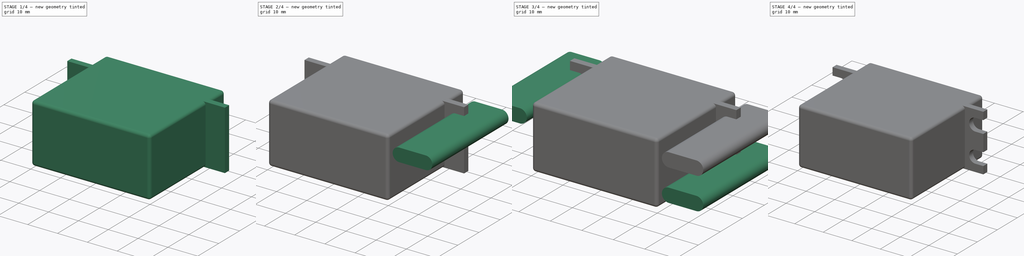
[diagram: build sequence overview — one tinted view per stage of 4, left to right]
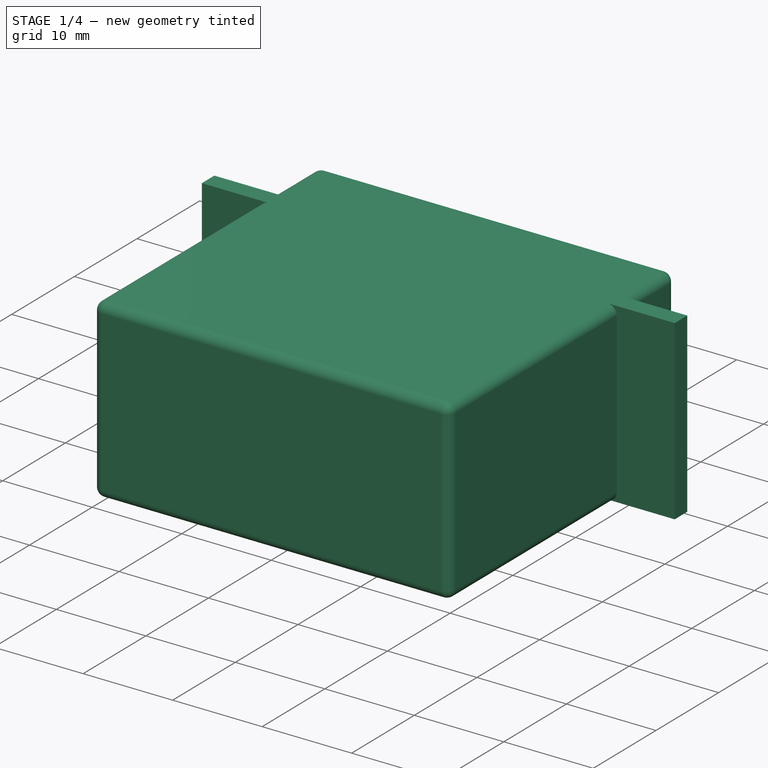
[diagram: stage 1 of 4 — iso view after this stage's code; geometry added in this stage tinted green]
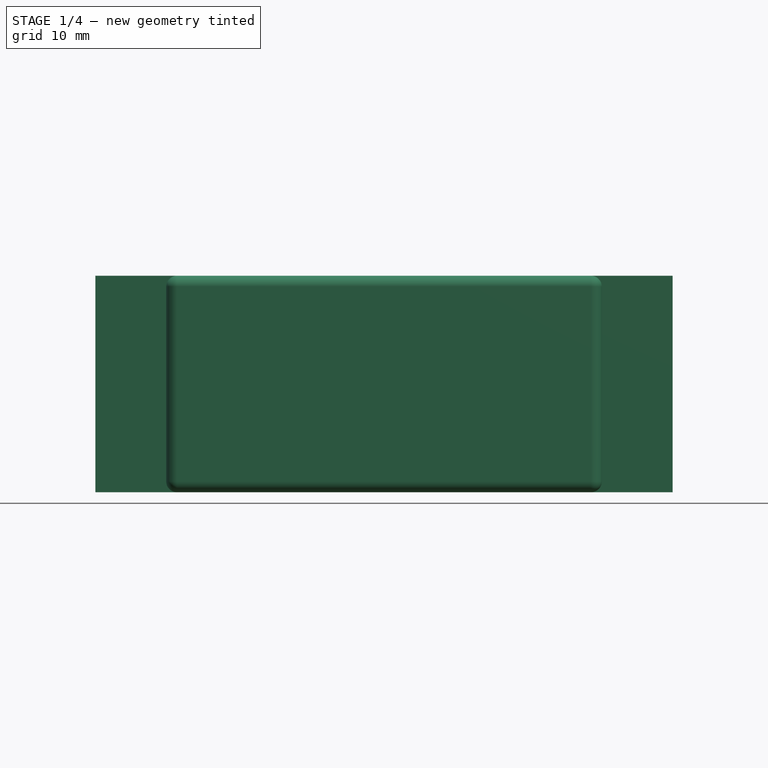
[diagram: stage 1 of 4 — front view after this stage's code; geometry added in this stage tinted green]
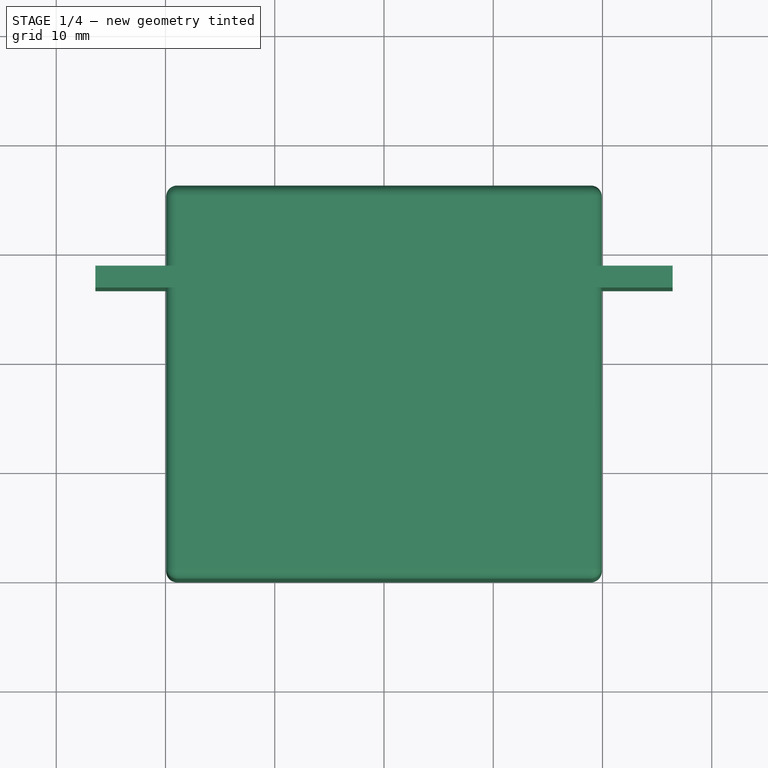
[diagram: stage 1 of 4 — top view after this stage's code; geometry added in this stage tinted green]
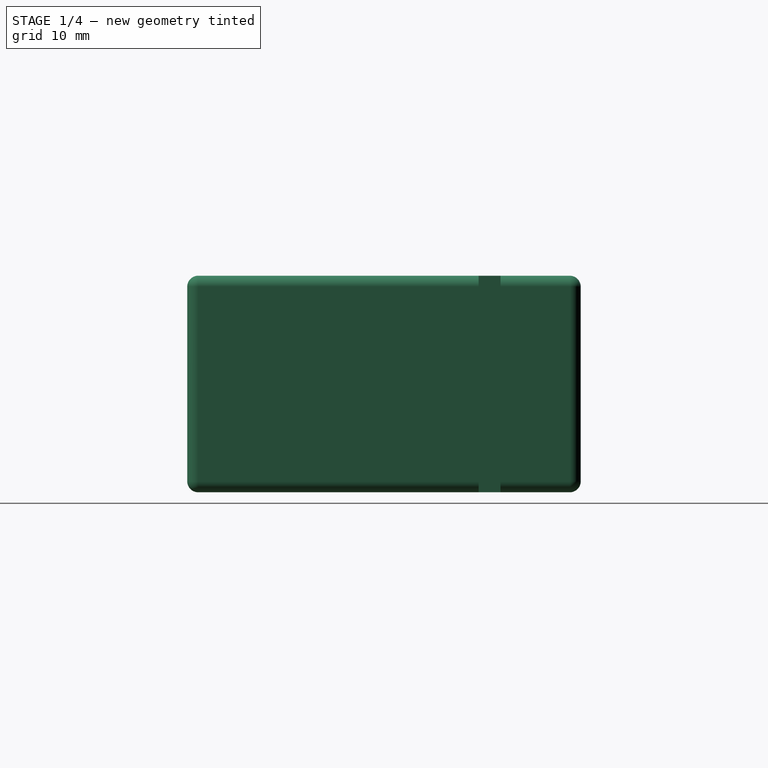
[diagram: stage 1 of 4 — right view after this stage's code; geometry added in this stage tinted green]
FCSTD DOCUMENT  (FreeCAD 0.20R29410 (Git))
Label: SERVO PARAMETRIQUE
License: All rights reserved
LicenseURL: http://en.wikipedia.org/wiki/All_rights_reserved
objects: Sketcher::SketchObject×7, PartDesign::Pad×7, PartDesign::Body×7, Part::MultiFuse×2, Spreadsheet::Sheet×1, Image::ImagePlane×1, PartDesign::Fillet×1, Part::Cut×1, App::Part×1
note: 33 computed .brp shape members not serialized (recipe doc carries the construction recipe); baked Part::Feature solids carry a one-line shape summary decoded from their .brp

FEATURE [Spreadsheet::Sheet] Spreadsheet  label="SERVOParameters"
  cells = A1=Choix; C1=A; D1=B; E1=C; F1=D; G1=E; H1=F; I1=G; J1=H; K1=J; L1=K; M1=M; N1=X; O1=Diametre L; P1=Spline Diam; A2(MARQUE)=TURNIGY; B2(SERVONAME)==hiddenref(Part.configuration.String); C2(VAL_A)==.C3; D2(VAL_B)==.D3; E2(VAL_C)==.E3; F2(VAL_D)==.F3; G2(VAL_E)==.G3; H2(VAL_F)==.H3; I2(VAL_G)==.I3; J2(VAL_H)==.J3; K2(VAL_J)==.K3; L2(VAL_K)==.L3; M2(VAL_M)==.M3; N2(VAL_X)==.N3; O2(VAL_DIAM_L)==.O3; P2(VAL_DIAM_SPLINE)==.P3; A3=HITECH; B3=HS331; C3=19.82; D3=13.47; E3=33.79; F3=10.17; G3=9.66; H3=30.22; I3=11.68; J3=26.67; K3=52.84; L3=9.35; M3=39.88; N3=3.05; O3=4.38; P3=5; A4=TURNIGY; B4=GTY-4409MD; C4=20.5; D4=13; E4=35; F4=10; G4=8; H4=30; I4=9; J4=19.6; K4=55; L4=8.5; M4=41; N4=4.4; O4=4.9; P4=5
  expr: .cells.Bind.C2.ZZ2 = tuple(.cells; <<C>> + str(hiddenref(Part.configuration) + 3); <<ZZ>> + str(hiddenref(Part.configuration) + 3))
FEATURE [Image::ImagePlane] ImagePlane  label="Data Servo"
  Placement = pos=(0,0,-10) rot=(0,0,1;0rad)
  XSize = 142
  YSize = 88
FEATURE [Sketcher::SketchObject] Sketch
  FullyConstrained = true
  MapMode = 5
  Support = -> [XY_Plane001]
  expr: Constraints[24] = <<SERVOParameters>>.VAL_M
  expr: Constraints[25] = <<SERVOParameters>>.VAL_J
  expr: Constraints[26] = <<SERVOParameters>>.VAL_H
  expr: Constraints[31] = <<SERVOParameters>>.VAL_K
  sketch-geometry (12):
    g0: LineSegment StartX=-19.94 StartY=0 StartZ=0 EndX=-19.94 EndY=26.67 EndZ=0
    g1: LineSegment StartX=-19.94 StartY=26.67 StartZ=0 EndX=-26.42 EndY=26.67 EndZ=0
    g2: LineSegment StartX=-26.42 StartY=26.67 StartZ=0 EndX=-26.42 EndY=28.67 EndZ=0
    g3: LineSegment StartX=-26.42 StartY=28.67 StartZ=0 EndX=-19.94 EndY=28.67 EndZ=0
    g4: LineSegment StartX=-19.94 StartY=28.67 StartZ=0 EndX=-19.94 EndY=36.02 EndZ=0
    g5: LineSegment StartX=19.94 StartY=36.02 StartZ=0 EndX=19.94 EndY=28.67 EndZ=0
    g6: LineSegment StartX=19.94 StartY=28.67 StartZ=0 EndX=26.42 EndY=28.67 EndZ=0
    g7: LineSegment StartX=26.42 StartY=28.67 StartZ=0 EndX=26.42 EndY=26.67 EndZ=0
    g8: LineSegment StartX=26.42 StartY=26.67 StartZ=0 EndX=19.94 EndY=26.67 EndZ=0
    g9: LineSegment StartX=19.94 StartY=26.67 StartZ=0 EndX=19.94 EndY=0 EndZ=0
    g10: LineSegment StartX=19.94 StartY=0 StartZ=0 EndX=-19.94 EndY=0 EndZ=0
    g11: LineSegment StartX=-19.94 StartY=36.02 StartZ=0 EndX=19.94 EndY=36.02 EndZ=0
  constraints (32):
    c: PointOnObject(g0,g-1)
    c: Vertical(g0)
    c: Coincident(g0,g1)
    c: Horizontal(g1)
    c: Coincident(g1,g2)
    c: Vertical(g2)
    c: Coincident(g2,g3)
    c: Horizontal(g3)
    c: Coincident(g3,g4)
    c: Vertical(g5)
    c: Coincident(g5,g6)
    c: Horizontal(g6)
    c: Coincident(g6,g7)
    c: Vertical(g7)
    c: Coincident(g7,g8)
    c: Coincident(g8,g9)
    c: Coincident(g9,g10)
    c: Coincident(g10,g0)
    c: Horizontal(g8)
    c: Symmetric(g0,g9,g-2)
    c: Tangent(g0,g4)
    c: Tangent(g9,g5)
    c: Symmetric(g1,g7,g-2)
    c: Equal(g2,g7)
    c: DistanceX(g0,g9) = 39.88
    c: DistanceX(g1,g7) = 52.84
    c: DistanceY(g0,g1) = 26.67
    c: Coincident(g11,g4)
    c: Coincident(g11,g5)
    c: Horizontal(g11)
    c: DistanceY(g1,g2) = 2
    c: DistanceY(g1,g4) = 9.35
FEATURE [PartDesign::Pad] Pad
  Direction = (0,0,1)
  Length = 19.82
  Length2 = 100
  Profile = -> Sketch
  Type = 0
  expr: Length = <<SERVOParameters>>.VAL_A
FEATURE [PartDesign::Body] Body005
  Group = -> [Sketch005,Pad005]
  Origin = -> Origin006
  Placement = pos=(0,38.35,0) rot=(0,0,1;0rad)
  Tip = -> Pad005
  expr: .Placement.Base.y = <<SERVOParameters>>.VAL_H + <<SERVOParameters>>.VAL_G
FEATURE [PartDesign::Fillet] Fillet
  Base = -> Pad [Edge19,Edge18,Edge14,Edge15,Edge16,Edge3,Edge4,Edge1,Edge35,Edge33,Edge21,Edge17,Edge22,Edge34,Edge32,Edge36]
  BaseFeature = -> Pad
  Radius = 1
  SupportTransform = false
  UseAllEdges = false
FEATURE [PartDesign::Body] Body
  Group = -> [Sketch,Pad,Fillet]
  Origin = -> Origin001
  Tip = -> Fillet
FEATURE [Sketcher::SketchObject] Sketch006
  FullyConstrained = true
  MapMode = 5
  Placement = pos=(0,0,0) rot=(1,0,0;1.5708rad)
  Support = -> [XZ_Plane007]
  expr: Constraints[0] = <<SERVOParameters>>.VAL_A / 3
  expr: Constraints[1] = <<SERVOParameters>>.VAL_A / 2
  expr: Constraints[2] = <<SERVOParameters>>.VAL_M / 2 - <<SERVOParameters>>.VAL_E
  sketch-geometry (1):
    g0: Circle CenterX=10.28 CenterY=9.91 CenterZ=0 NormalX=0 NormalY=0 NormalZ=1 AngleXU=0 Radius=6.60667
  constraints (3):
    c: Radius(g0) = 6.60667
    c: DistanceY(g-1,g0) = 9.91
    c: DistanceX(g-1,g0) = 10.28
FEATURE [PartDesign::Pad] Pad006
  Direction = (0,-1,-2e-16)
  Length = 2.33
  Length2 = 100
  Placement = pos=(0,0,0) rot=(1,0,0;1.5708rad)
  Profile = -> Sketch006
  Reversed = true
  Type = 0
  expr: Length = <<SERVOParameters>>.VAL_G - <<SERVOParameters>>.VAL_K
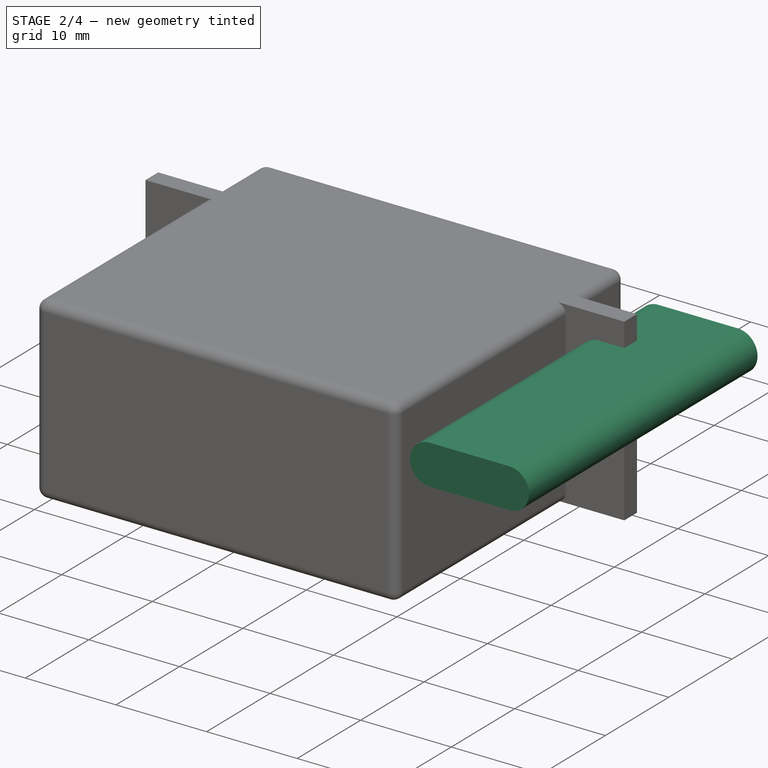
[diagram: stage 2 of 4 — iso view after this stage's code; geometry added in this stage tinted green]
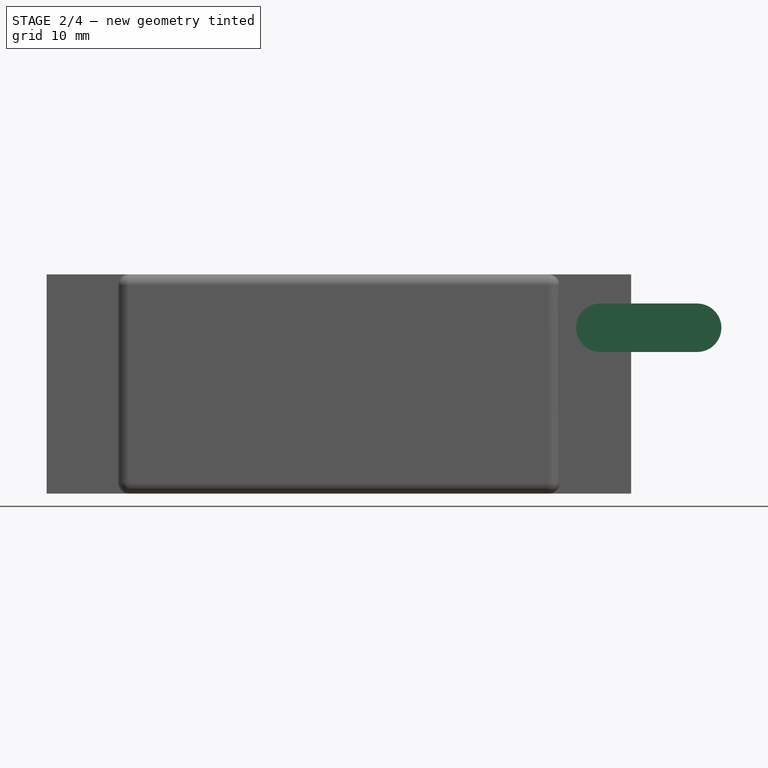
[diagram: stage 2 of 4 — front view after this stage's code; geometry added in this stage tinted green]
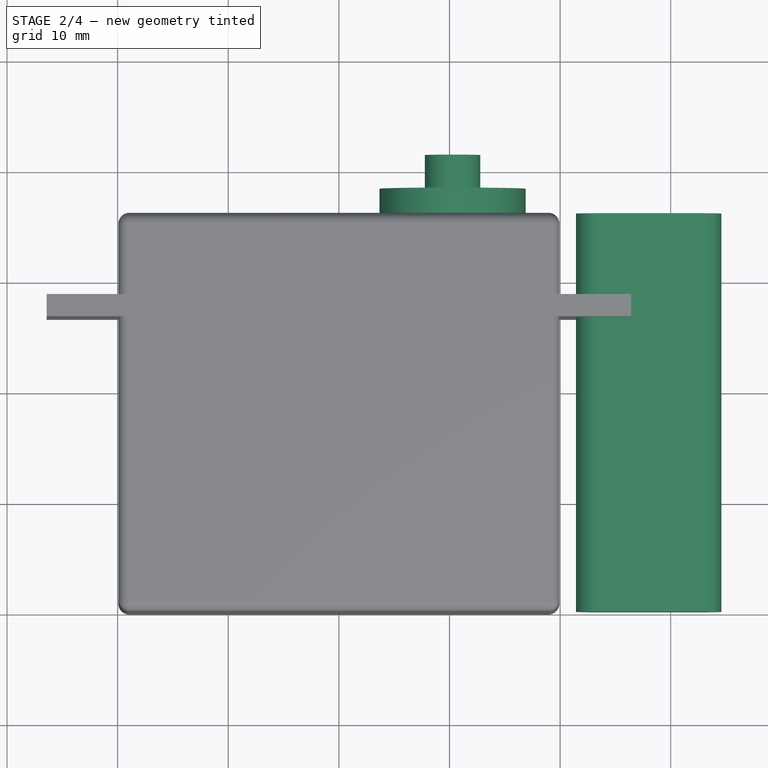
[diagram: stage 2 of 4 — top view after this stage's code; geometry added in this stage tinted green]
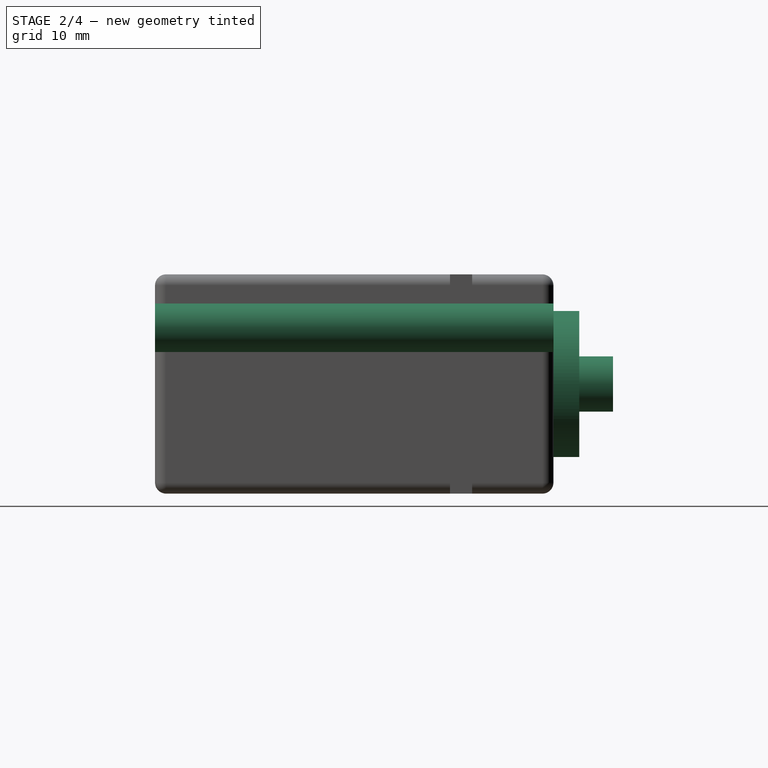
[diagram: stage 2 of 4 — right view after this stage's code; geometry added in this stage tinted green]
FEATURE [PartDesign::Body] Body003
  Group = -> [Sketch003,Pad003]
  Origin = -> Origin004
  Tip = -> Pad003
FEATURE [Sketcher::SketchObject] Sketch004
  FullyConstrained = true
  MapMode = 5
  Placement = pos=(0,0,0) rot=(1,0,0;1.5708rad)
  Support = -> [XZ_Plane005]
  expr: Constraints[6] = <<SERVOParameters>>.VAL_DIAM_L / 2
  expr: Constraints[7] = <<SERVOParameters>>.VAL_DIAM_L * 2
  expr: Constraints[8] = <<SERVOParameters>>.VAL_A / 2 + <<SERVOParameters>>.VAL_D / 2
  expr: Constraints[9] = (<<SERVOParameters>>.VAL_C + <<SERVOParameters>>.VAL_B) / 2
  sketch-geometry (4):
    g0: ArcOfCircle CenterX=23.63 CenterY=14.995 CenterZ=0 NormalX=0 NormalY=0 NormalZ=1 AngleXU=0 Radius=2.19 StartAngle=1.5708 EndAngle=4.71239
    g1: ArcOfCircle CenterX=32.39 CenterY=14.995 CenterZ=0 NormalX=0 NormalY=0 NormalZ=1 AngleXU=0 Radius=2.19 StartAngle=4.71239 EndAngle=7.85398
    g2: LineSegment StartX=23.63 StartY=12.805 StartZ=0 EndX=32.39 EndY=12.805 EndZ=0
    g3: LineSegment StartX=23.63 StartY=17.185 StartZ=0 EndX=32.39 EndY=17.185 EndZ=0
  constraints (10):
    c: Tangent(g0,g3) = 1.5708
    c: Tangent(g0,g2) = -1.5708
    c: Tangent(g2,g1) = -1.5708
    c: Tangent(g3,g1) = 1.5708
    c: Horizontal(g2)
    c: Equal(g0,g1)
    c: Radius(g1) = 2.19
    c: DistanceX(g0,g1) = 8.76
    c: DistanceY(g-1,g0) = 14.995
    c: DistanceX(g-1,g0) = 23.63
FEATURE [PartDesign::Pad] Pad004
  Direction = (0,-1,-2e-16)
  Length = 36.02
  Length2 = 100
  Placement = pos=(0,0,0) rot=(1,0,0;1.5708rad)
  Profile = -> Sketch004
  Reversed = true
  Type = 0
  expr: Length = <<SERVOParameters>>.VAL_H + <<SERVOParameters>>.VAL_K
FEATURE [Sketcher::SketchObject] Sketch005
  FullyConstrained = true
  MapMode = 5
  Placement = pos=(0,0,0) rot=(1,0,0;1.5708rad)
  Support = -> [XZ_Plane006]
  expr: Constraints[0] = <<SERVOParameters>>.VAL_DIAM_SPLINE / 2
  expr: Constraints[1] = <<SERVOParameters>>.VAL_A / 2
  expr: Constraints[2] = <<SERVOParameters>>.VAL_M / 2 - <<SERVOParameters>>.VAL_E
  sketch-geometry (1):
    g0: Circle CenterX=10.28 CenterY=9.91 CenterZ=0 NormalX=0 NormalY=0 NormalZ=1 AngleXU=0 Radius=2.5
  constraints (3):
    c: Radius(g0) = 2.5
    c: DistanceY(g-1,g0) = 9.91
    c: DistanceX(g-1,g0) = 10.28
FEATURE [PartDesign::Pad] Pad005
  Direction = (0,-1,-2e-16)
  Length = 3.05
  Length2 = 100
  Placement = pos=(0,0,0) rot=(1,0,0;1.5708rad)
  Profile = -> Sketch005
  Reversed = true
  Type = 0
  expr: Length = <<SERVOParameters>>.VAL_X
FEATURE [PartDesign::Body] Body006
  Group = -> [Sketch006,Pad006]
  Origin = -> Origin007
  Placement = pos=(0,36.02,0) rot=(0,0,1;0rad)
  Tip = -> Pad006
  expr: .Placement.Base.y = <<SERVOParameters>>.VAL_H + <<SERVOParameters>>.VAL_K
FEATURE [Part::MultiFuse] Fusion001
  Shapes = -> [Body,Body005,Body006]
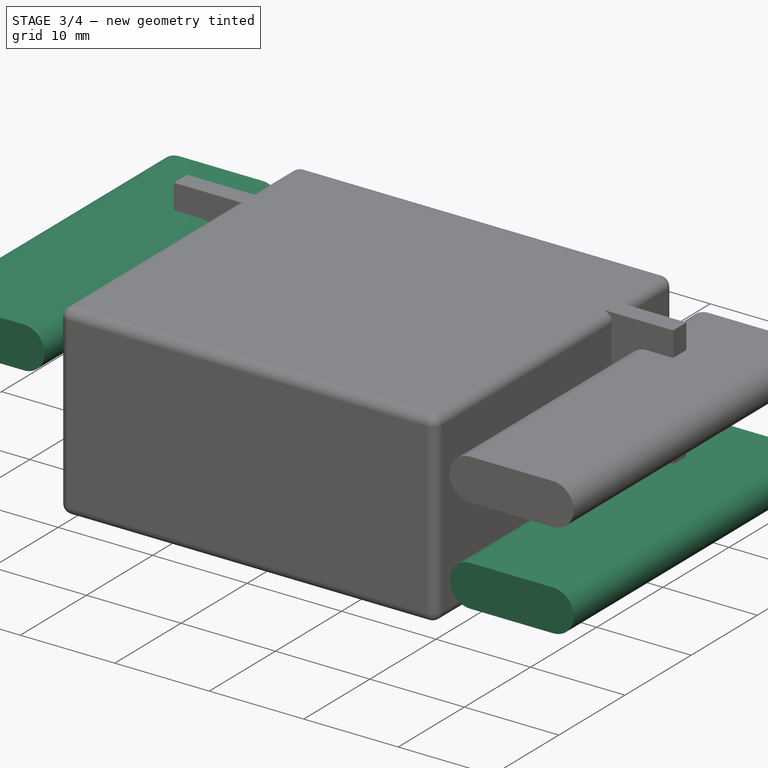
[diagram: stage 3 of 4 — iso view after this stage's code; geometry added in this stage tinted green]
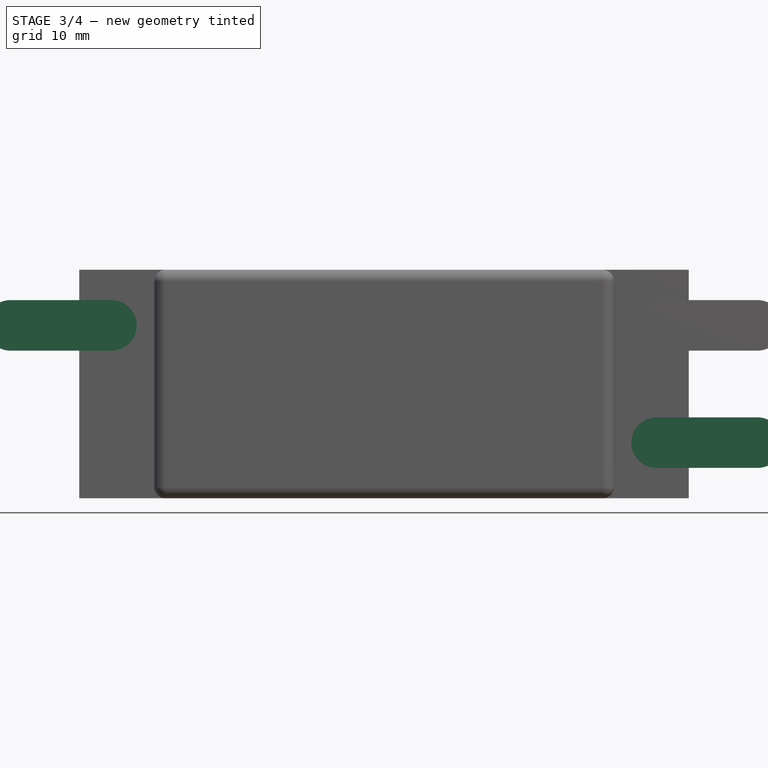
[diagram: stage 3 of 4 — front view after this stage's code; geometry added in this stage tinted green]
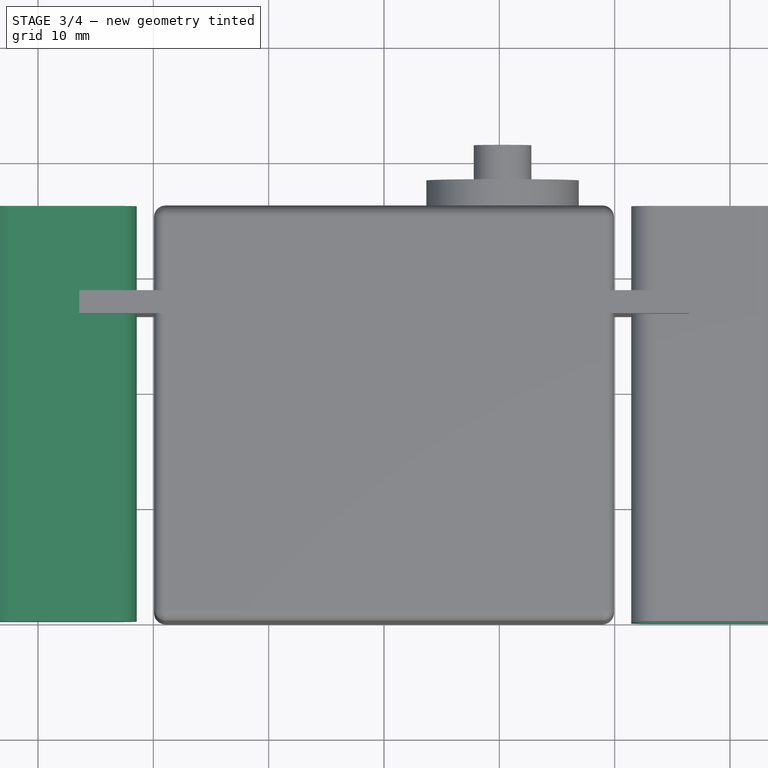
[diagram: stage 3 of 4 — top view after this stage's code; geometry added in this stage tinted green]
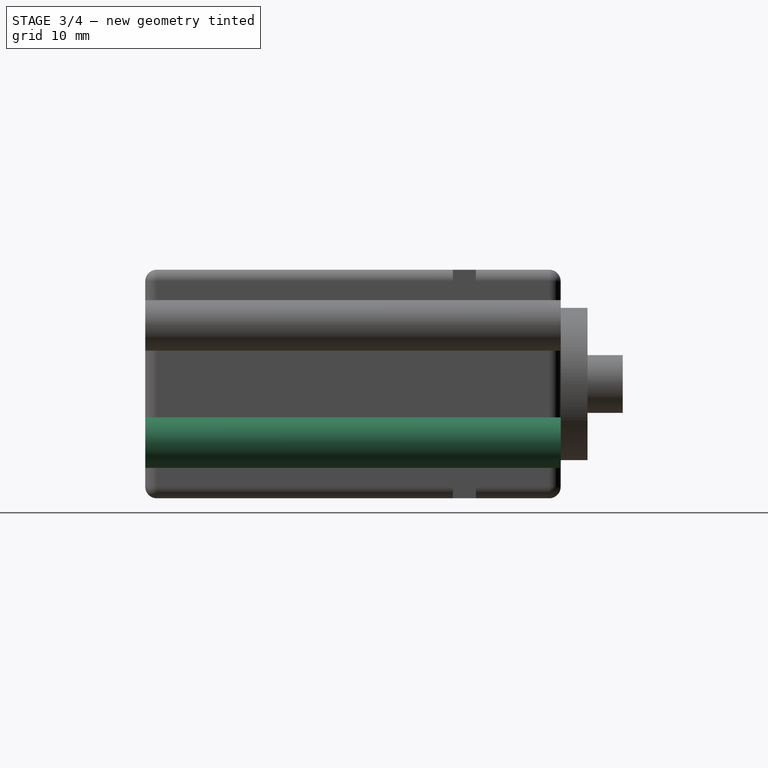
[diagram: stage 3 of 4 — right view after this stage's code; geometry added in this stage tinted green]
FEATURE [PartDesign::Body] Body001
  Group = -> [Sketch001,Pad001]
  Origin = -> Origin002
  Tip = -> Pad001
FEATURE [Sketcher::SketchObject] Sketch002
  FullyConstrained = true
  MapMode = 5
  Placement = pos=(0,0,0) rot=(1,0,0;1.5708rad)
  Support = -> [XZ_Plane003]
  expr: Constraints[6] = <<SERVOParameters>>.VAL_DIAM_L / 2
  expr: Constraints[7] = <<SERVOParameters>>.VAL_DIAM_L * 2
  expr: Constraints[8] = <<SERVOParameters>>.VAL_A / 2 + <<SERVOParameters>>.VAL_D / 2
  expr: Constraints[9] = (<<SERVOParameters>>.VAL_B + <<SERVOParameters>>.VAL_C) / 2
  sketch-geometry (4):
    g0: ArcOfCircle CenterX=-32.39 CenterY=14.995 CenterZ=0 NormalX=0 NormalY=0 NormalZ=1 AngleXU=0 Radius=2.19 StartAngle=1.5708 EndAngle=4.71239
    g1: ArcOfCircle CenterX=-23.63 CenterY=14.995 CenterZ=0 NormalX=0 NormalY=0 NormalZ=1 AngleXU=0 Radius=2.19 StartAngle=4.71239 EndAngle=7.85398
    g2: LineSegment StartX=-32.39 StartY=12.805 StartZ=0 EndX=-23.63 EndY=12.805 EndZ=0
    g3: LineSegment StartX=-32.39 StartY=17.185 StartZ=0 EndX=-23.63 EndY=17.185 EndZ=0
  constraints (10):
    c: Tangent(g0,g3) = 1.5708
    c: Tangent(g0,g2) = -1.5708
    c: Tangent(g2,g1) = -1.5708
    c: Tangent(g3,g1) = 1.5708
    c: Horizontal(g2)
    c: Equal(g0,g1)
    c: Radius(g1) = 2.19
    c: DistanceX(g0,g1) = 8.76
    c: DistanceY(g-1,g0) = 14.995
    c: DistanceX(g1,g-1) = 23.63
FEATURE [PartDesign::Pad] Pad002
  Direction = (0,-1,-2e-16)
  Length = 36.02
  Length2 = 100
  Placement = pos=(0,0,0) rot=(1,0,0;1.5708rad)
  Profile = -> Sketch002
  Reversed = true
  Type = 0
  expr: Length = <<SERVOParameters>>.VAL_K + <<SERVOParameters>>.VAL_H
FEATURE [PartDesign::Body] Body002
  Group = -> [Sketch002,Pad002]
  Origin = -> Origin003
  Tip = -> Pad002
FEATURE [Sketcher::SketchObject] Sketch003
  FullyConstrained = true
  MapMode = 5
  Placement = pos=(0,0,0) rot=(1,0,0;1.5708rad)
  Support = -> [XZ_Plane004]
  expr: Constraints[6] = <<SERVOParameters>>.VAL_DIAM_L / 2
  expr: Constraints[7] = <<SERVOParameters>>.VAL_A / 2 - <<SERVOParameters>>.VAL_D / 2
  expr: Constraints[8] = (<<SERVOParameters>>.VAL_B + <<SERVOParameters>>.VAL_C) / 2
  expr: Constraints[9] = <<SERVOParameters>>.VAL_DIAM_L * 2
  sketch-geometry (4):
    g0: ArcOfCircle CenterX=23.63 CenterY=4.825 CenterZ=0 NormalX=0 NormalY=0 NormalZ=1 AngleXU=0 Radius=2.19 StartAngle=1.5708 EndAngle=4.71239
    g1: ArcOfCircle CenterX=32.39 CenterY=4.825 CenterZ=0 NormalX=0 NormalY=0 NormalZ=1 AngleXU=0 Radius=2.19 StartAngle=4.71239 EndAngle=7.85398
    g2: LineSegment StartX=23.63 StartY=2.635 StartZ=0 EndX=32.39 EndY=2.635 EndZ=0
    g3: LineSegment StartX=23.63 StartY=7.015 StartZ=0 EndX=32.39 EndY=7.015 EndZ=0
  constraints (10):
    c: Tangent(g0,g3) = 1.5708
    c: Tangent(g0,g2) = -1.5708
    c: Tangent(g2,g1) = -1.5708
    c: Tangent(g3,g1) = 1.5708
    c: Horizontal(g2)
    c: Equal(g0,g1)
    c: Radius(g0) = 2.19
    c: DistanceY(g-1,g0) = 4.825
    c: DistanceX(g-1,g0) = 23.63
    c: DistanceX(g0,g1) = 8.76
FEATURE [PartDesign::Pad] Pad003
  Direction = (0,-1,-2e-16)
  Length = 36.02
  Length2 = 100
  Placement = pos=(0,0,0) rot=(1,0,0;1.5708rad)
  Profile = -> Sketch003
  Reversed = true
  Type = 0
  expr: Length = <<SERVOParameters>>.VAL_H + <<SERVOParameters>>.VAL_K
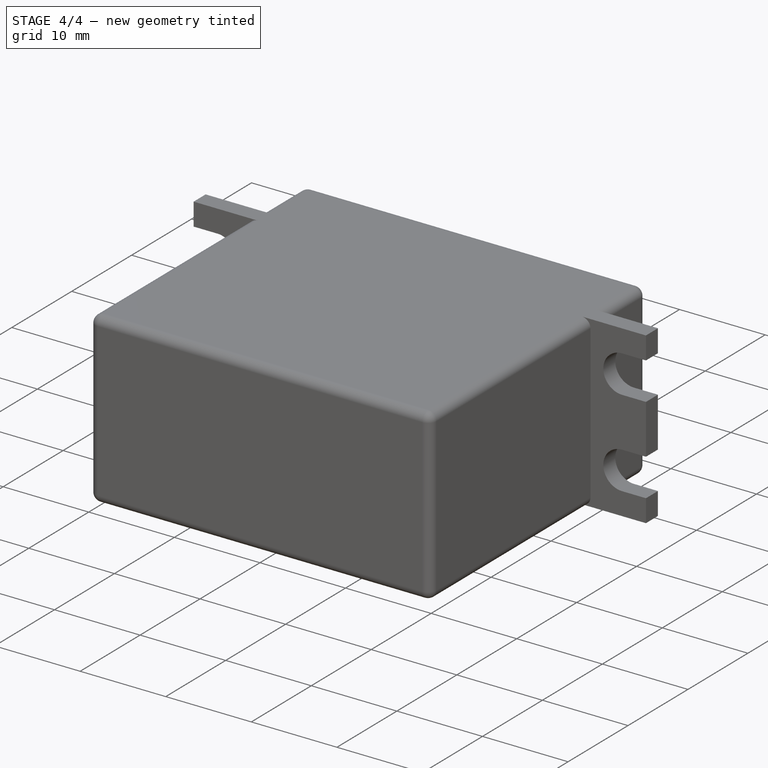
[diagram: stage 4 of 4 — iso view after this stage's code; geometry added in this stage tinted green]
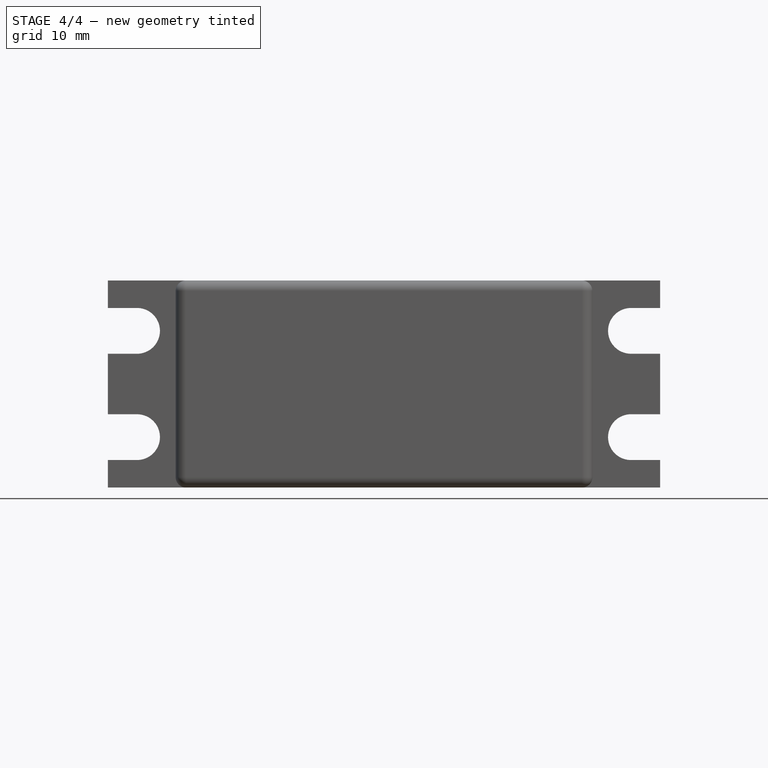
[diagram: stage 4 of 4 — front view after this stage's code; geometry added in this stage tinted green]
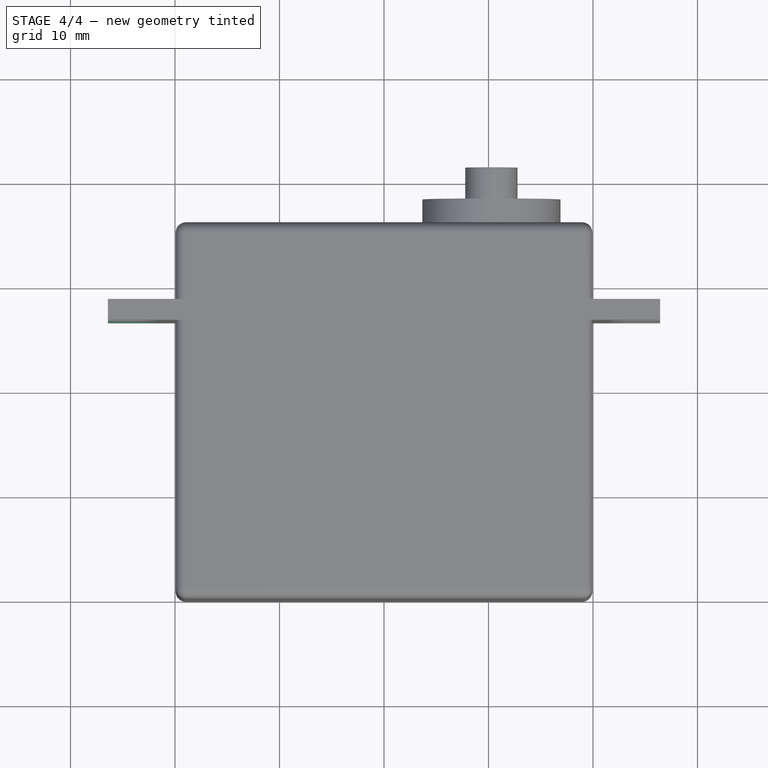
[diagram: stage 4 of 4 — top view after this stage's code; geometry added in this stage tinted green]
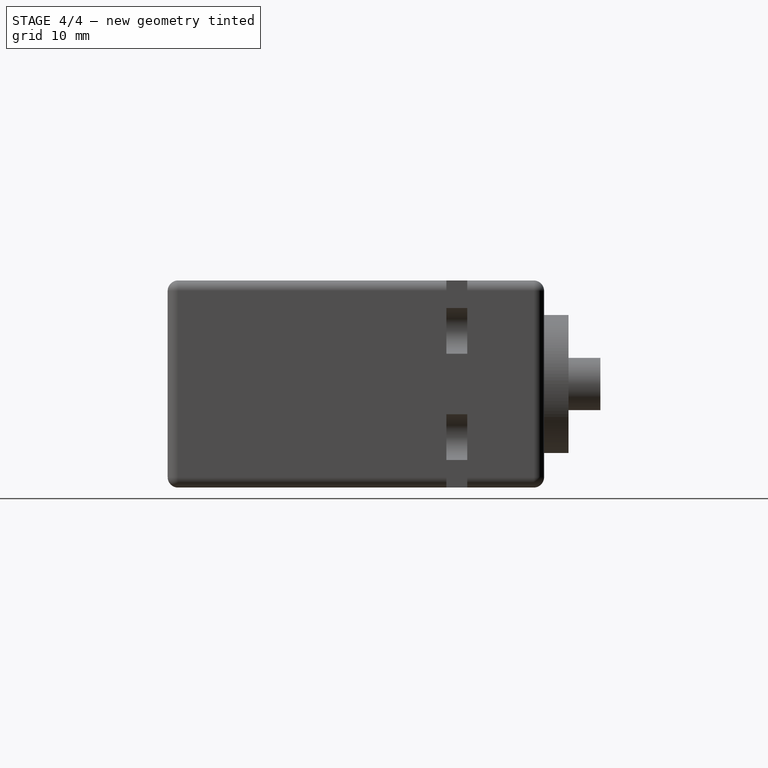
[diagram: stage 4 of 4 — right view after this stage's code; geometry added in this stage tinted green]
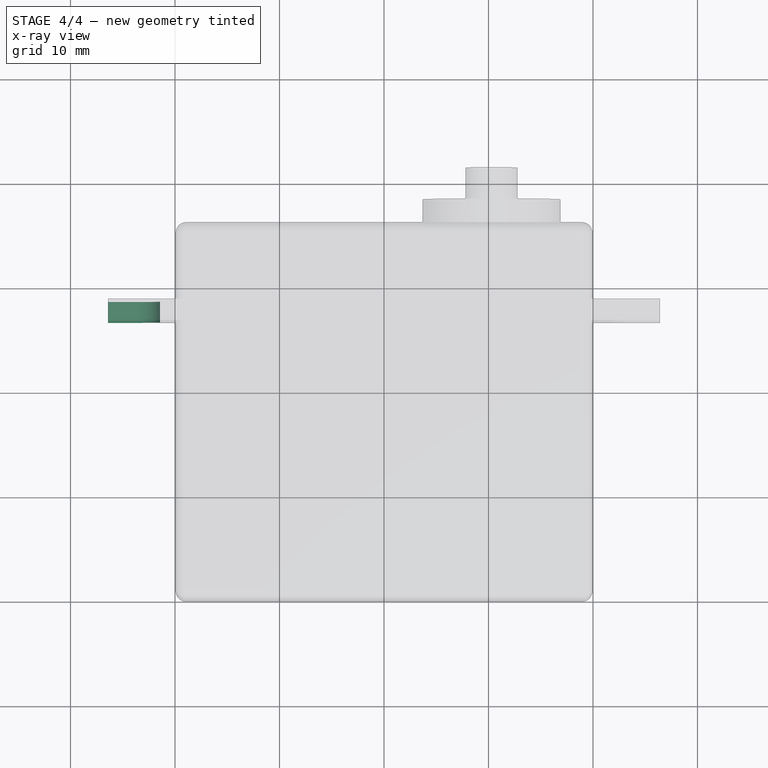
[diagram: stage 4 of 4 — x-ray composite at the top view; earlier geometry ghosted, this stage's added geometry solid]
FEATURE [Sketcher::SketchObject] Sketch001
  FullyConstrained = true
  MapMode = 5
  Placement = pos=(0,0,0) rot=(1,0,0;1.5708rad)
  Support = -> [XZ_Plane002]
  expr: Constraints[6] = <<SERVOParameters>>.VAL_DIAM_L / 2
  expr: Constraints[7] = <<SERVOParameters>>.VAL_A / 2 - <<SERVOParameters>>.VAL_D / 2
  expr: Constraints[8] = (<<SERVOParameters>>.VAL_B + <<SERVOParameters>>.VAL_C) / 2
  expr: Constraints[9] = <<SERVOParameters>>.VAL_DIAM_L * 2
  sketch-geometry (4):
    g0: ArcOfCircle CenterX=-32.39 CenterY=4.825 CenterZ=0 NormalX=0 NormalY=0 NormalZ=1 AngleXU=0 Radius=2.19 StartAngle=1.5708 EndAngle=4.71239
    g1: ArcOfCircle CenterX=-23.63 CenterY=4.825 CenterZ=0 NormalX=0 NormalY=0 NormalZ=1 AngleXU=0 Radius=2.19 StartAngle=4.71239 EndAngle=7.85398
    g2: LineSegment StartX=-32.39 StartY=2.635 StartZ=0 EndX=-23.63 EndY=2.635 EndZ=0
    g3: LineSegment StartX=-32.39 StartY=7.015 StartZ=0 EndX=-23.63 EndY=7.015 EndZ=0
  constraints (10):
    c: Tangent(g0,g3) = 1.5708
    c: Tangent(g0,g2) = -1.5708
    c: Tangent(g2,g1) = -1.5708
    c: Tangent(g3,g1) = 1.5708
    c: Horizontal(g2)
    c: Equal(g0,g1)
    c: Radius(g1) = 2.19
    c: DistanceY(g-1,g0) = 4.825
    c: DistanceX(g1,g-1) = 23.63
    c: DistanceX(g0,g1) = 8.76
FEATURE [PartDesign::Pad] Pad001
  Direction = (0,-1,-2e-16)
  Length = 36.02
  Length2 = 100
  Placement = pos=(0,0,0) rot=(1,0,0;1.5708rad)
  Profile = -> Sketch001
  Reversed = true
  Type = 0
  expr: Length = <<SERVOParameters>>.VAL_H + <<SERVOParameters>>.VAL_K
FEATURE [PartDesign::Body] Body004
  Group = -> [Sketch004,Pad004]
  Origin = -> Origin005
  Tip = -> Pad004
FEATURE [Part::MultiFuse] Fusion
  Shapes = -> [Body001,Body002,Body003,Body004]
FEATURE [Part::Cut] Cut
  Base = -> Fusion001
  Tool = -> Fusion
FEATURE [App::Part] Part  label="TURNIGY_HS331"
  Group = -> [Spreadsheet,ImagePlane,Body,Body001,Body002,Body003,Body004,Fusion,Body005,Body006,Fusion001,Cut]
  Origin = -> Origin
  configuration = 0
  expr: .configuration.Enum = Spreadsheet.cells[<<B3:|>>]
  expr: Label = <<SERVOParameters>>.MARQUE + <<_>> + <<SERVOParameters>>.SERVONAME
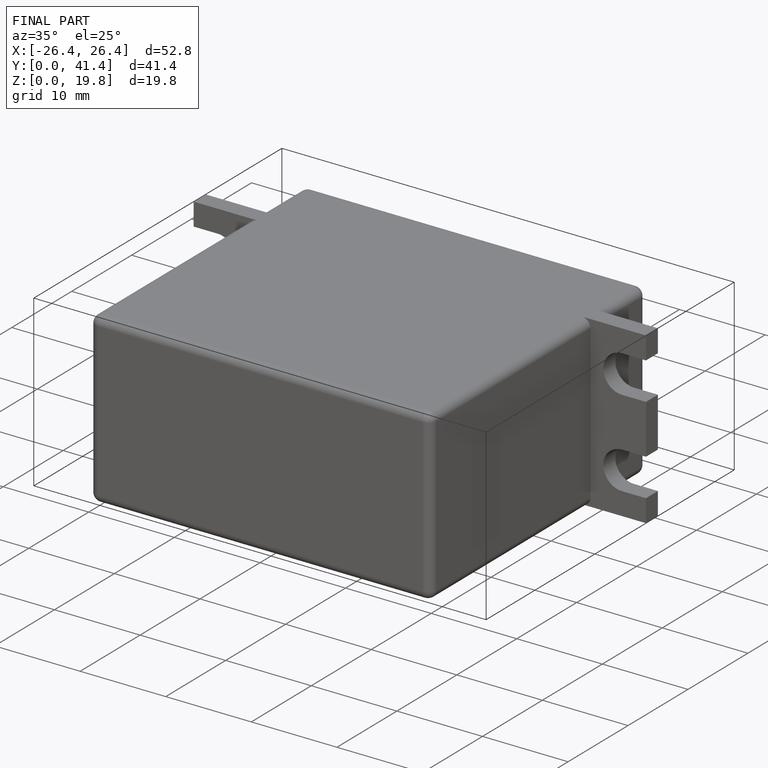
[diagram: finished part — iso view with bounding-box wireframe]
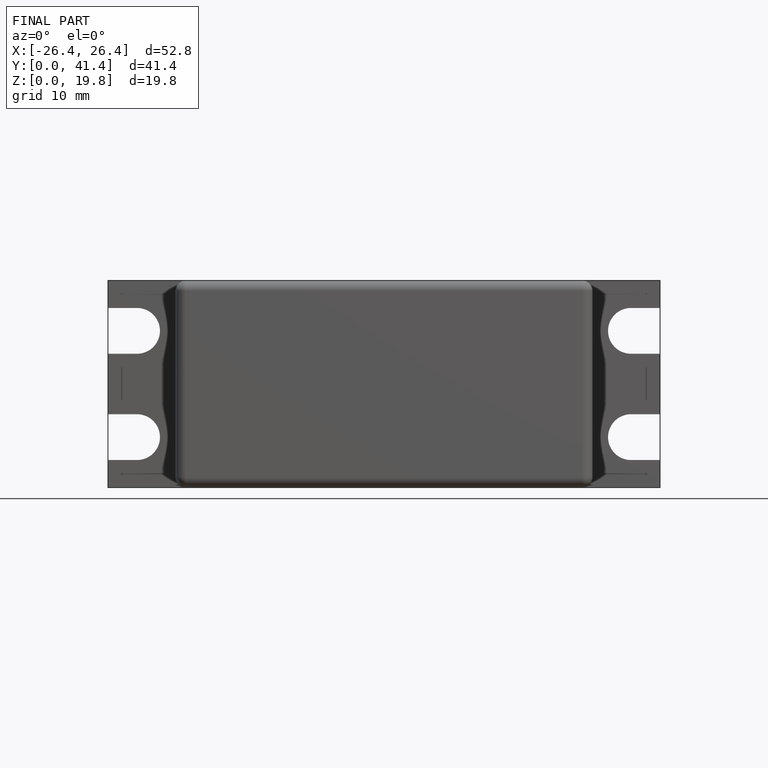
[diagram: finished part — front view with bounding-box wireframe]
